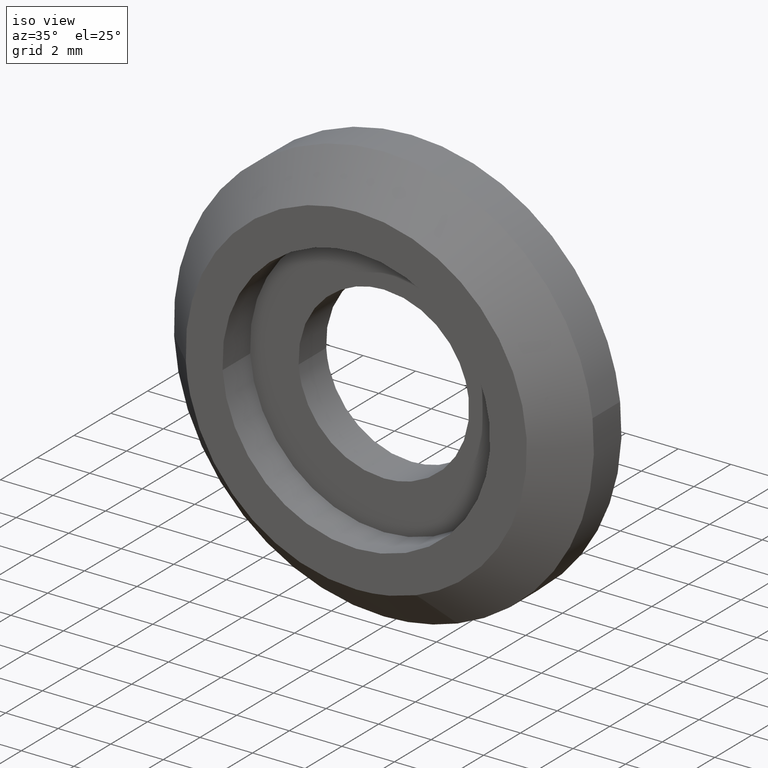
[diagram: clean part render]
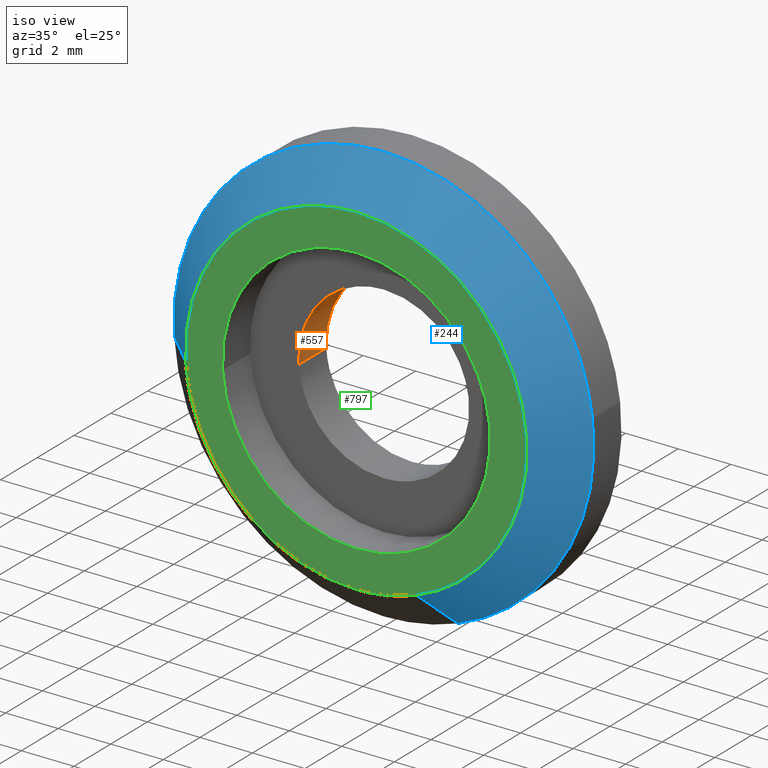
[diagram: same view with three faces highlighted in distinct colors, each labeled with its STEP entity id]
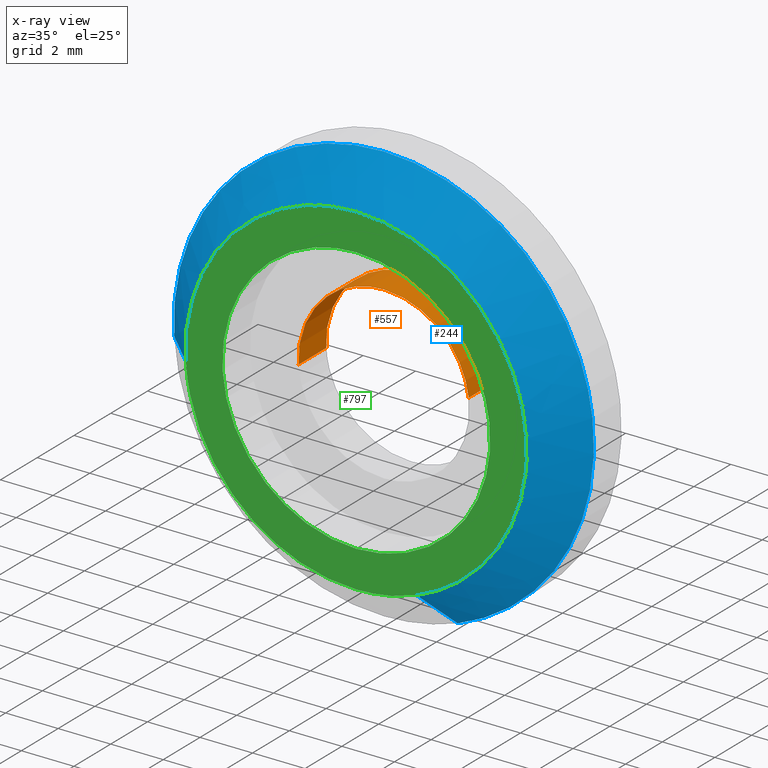
[diagram: x-ray of the same camera — body ghosted, the three highlighted faces saturated]
A machine part, iso view with three faces highlighted in distinct colors.
The next image is the same camera in x-ray (body ghosted, the three faces saturated) — at least one of them is partly hidden behind the body in this view.
Their STEP definitions:

[orange] entity #557 — the highlighted face is a freeform B-spline surface patch.
#394=CARTESIAN_POINT('',(3.227281486811727,1.500000000000071,0.383606836308235));
#395=VERTEX_POINT('',#394);
#413=CARTESIAN_POINT('',(-3.243938286670342,1.499999999999952,-0.198404617548119));
#414=VERTEX_POINT('',#413);
#428=CARTESIAN_POINT('',(-3.243938284306497,3.469447E-017,-0.198404656197849));
#429=VERTEX_POINT('',#428);
#430=CARTESIAN_POINT('',(-3.243938284306497,3.469447E-017,-0.198404656197849));
#431=CARTESIAN_POINT('',(-3.243938286670342,1.499999999999952,-0.198404617548119));
#432=QUASI_UNIFORM_CURVE('',1,(#430,#431),.UNSPECIFIED.,.F.,.U.);
#433=EDGE_CURVE('',#429,#414,#432,.T.);
#450=CARTESIAN_POINT('',(3.227281480315944,3.194357E-017,0.383606890957840));
#451=VERTEX_POINT('',#450);
#467=CARTESIAN_POINT('',(3.227281480315944,3.194357E-017,0.383606890957840));
#468=CARTESIAN_POINT('',(3.227281486811727,1.500000000000071,0.383606836308235));
#469=QUASI_UNIFORM_CURVE('',1,(#467,#468),.UNSPECIFIED.,.F.,.U.);
#470=EDGE_CURVE('',#451,#395,#469,.T.);
#475=CARTESIAN_POINT('',(-3.243938094871067,-0.037500000000000,-0.198407753488285));
#476=CARTESIAN_POINT('',(-3.442345848359353,-0.037500000000000,3.045530341382781));
#477=CARTESIAN_POINT('',(-0.198407753488285,-0.037500000000000,3.243938094871067));
#478=CARTESIAN_POINT('',(2.865016345228379,-0.037500000000000,3.431305139380714));
#479=CARTESIAN_POINT('',(3.227280960681916,-0.037500000000000,0.383611262634465));
#480=CARTESIAN_POINT('',(-3.243938094871067,1.538437500000000,-0.198407753488285));
#481=CARTESIAN_POINT('',(-3.442345848359353,1.538437500000001,3.045530341382781));
#482=CARTESIAN_POINT('',(-0.198407753488285,1.538437500000000,3.243938094871067));
#483=CARTESIAN_POINT('',(2.865016345228379,1.538437500000000,3.431305139380714));
#484=CARTESIAN_POINT('',(3.227280960681916,1.538437500000000,0.383611262634465));
#492=(BOUNDED_SURFACE()B_SPLINE_SURFACE(2,1,((#475,#480),(#476,#481),(#477,#482),(#478,#483),(#479,#484)),.UNSPECIFIED.,.F.,.F.,.U.)B_SPLINE_SURFACE_WITH_KNOTS((3,2,3),(2,2),(0.0,5.384776310850235,10.554161569266460),(0.0,1.0),.UNSPECIFIED.)GEOMETRIC_REPRESENTATION_ITEM()RATIONAL_B_SPLINE_SURFACE(((1.0,1.0),(0.707106781186548,0.707106781186548),(1.0,1.0),(0.718822509939086,0.718822509939086),(0.977505800795127,0.977505800795127)))REPRESENTATION_ITEM('')SURFACE());
#493=CARTESIAN_POINT('',(0.0,1.500000000000000,3.250000000000000));
#494=VERTEX_POINT('',#493);
#495=CARTESIAN_POINT('',(0.0,1.500000000000000,3.250000000000000));
#496=CARTESIAN_POINT('',(2.886571196239680,1.500000000000001,3.250000000000000));
#497=CARTESIAN_POINT('',(3.227281486811727,1.500000000000071,0.383606836308235));
#505=(BOUNDED_CURVE()B_SPLINE_CURVE(2,(#495,#496,#497),.UNSPECIFIED.,.F.,.U.)B_SPLINE_CURVE_WITH_KNOTS((3,3),(0.0,0.229562705309400),.UNSPECIFIED.)CURVE()GEOMETRIC_REPRESENTATION_ITEM()RATIONAL_B_SPLINE_CURVE((1.0,0.731050561289623,0.956027208513637))REPRESENTATION_ITEM(''));
#506=EDGE_CURVE('',#494,#395,#505,.T.);
#507=ORIENTED_EDGE('',*,*,#506,.T.);
#508=ORIENTED_EDGE('',*,*,#470,.F.);
#509=CARTESIAN_POINT('',(0.0,0.0,3.250000000000000));
#510=VERTEX_POINT('',#509);
#511=CARTESIAN_POINT('',(0.0,0.0,3.250000000000000));
#512=CARTESIAN_POINT('',(2.886571147015454,0.0,3.250000000000000));
#513=CARTESIAN_POINT('',(3.227281480315944,3.194357E-017,0.383606890957840));
#521=(BOUNDED_CURVE()B_SPLINE_CURVE(2,(#511,#512,#513),.UNSPECIFIED.,.F.,.U.)B_SPLINE_CURVE_WITH_KNOTS((3,3),(0.0,0.229562702447560),.UNSPECIFIED.)CURVE()GEOMETRIC_REPRESENTATION_ITEM()RATIONAL_B_SPLINE_CURVE((1.0,0.731050564642477,0.956027202904301))REPRESENTATION_ITEM(''));
#522=EDGE_CURVE('',#510,#451,#521,.T.);
#523=ORIENTED_EDGE('',*,*,#522,.F.);
#524=CARTESIAN_POINT('',(-3.243938284306497,3.469447E-017,-0.198404656197849));
#525=CARTESIAN_POINT('',(-3.250000000000000,0.0,-0.099294927733059));
#526=CARTESIAN_POINT('',(-3.250000000000000,0.0,0.0));
#527=CARTESIAN_POINT('',(-3.250000000000000,0.0,3.250000000000000));
#528=CARTESIAN_POINT('',(0.0,0.0,3.250000000000000));
#536=(BOUNDED_CURVE()B_SPLINE_CURVE(2,(#524,#525,#526,#527,#528),.UNSPECIFIED.,.F.,.U.)B_SPLINE_CURVE_WITH_KNOTS((3,2,3),(0.739333126988512,0.750000000000000,1.0),.UNSPECIFIED.)CURVE()GEOMETRIC_REPRESENTATION_ITEM()RATIONAL_B_SPLINE_CURVE((0.976072394756659,0.987502980915963,1.0,0.707106781186547,1.0))REPRESENTATION_ITEM(''));
#537=EDGE_CURVE('',#429,#510,#536,.T.);
#538=ORIENTED_EDGE('',*,*,#537,.F.);
#539=ORIENTED_EDGE('',*,*,#433,.T.);
#540=CARTESIAN_POINT('',(-3.243938286670342,1.499999999999951,-0.198404617548119));
#541=CARTESIAN_POINT('',(-3.250000000000000,1.500000000000000,-0.099294908354011));
#542=CARTESIAN_POINT('',(-3.250000000000000,1.500000000000000,0.0));
#543=CARTESIAN_POINT('',(-3.250000000000000,1.500000000000000,3.250000000000000));
#544=CARTESIAN_POINT('',(0.0,1.500000000000000,3.250000000000000));
#552=(BOUNDED_CURVE()B_SPLINE_CURVE(2,(#540,#541,#542,#543,#544),.UNSPECIFIED.,.F.,.U.)B_SPLINE_CURVE_WITH_KNOTS((3,2,3),(0.739333129044312,0.750000000000000,1.0),.UNSPECIFIED.)CURVE()GEOMETRIC_REPRESENTATION_ITEM()RATIONAL_B_SPLINE_CURVE((0.976072399162636,0.987502983324483,1.0,0.707106781186547,1.0))REPRESENTATION_ITEM(''));
#553=EDGE_CURVE('',#414,#494,#552,.T.);
#554=ORIENTED_EDGE('',*,*,#553,.T.);
#555=EDGE_LOOP('',(#507,#508,#523,#538,#539,#554));
#556=FACE_OUTER_BOUND('',#555,.T.);
#557=ADVANCED_FACE('',(#556),#492,.F.);

[blue] entity #244 — the highlighted face is a freeform B-spline surface patch.
#62=CARTESIAN_POINT('',(2.812943795141329,8.550710E-013,-7.489148630210885));
#63=VERTEX_POINT('',#62);
#79=CARTESIAN_POINT('',(2.285516833554305,-1.499999999999113,-6.084933262045807));
#80=VERTEX_POINT('',#79);
#81=CARTESIAN_POINT('',(2.285516833554305,-1.499999999999113,-6.084933262045807));
#82=CARTESIAN_POINT('',(2.812943795141329,8.550710E-013,-7.489148630210885));
#83=QUASI_UNIFORM_CURVE('',1,(#81,#82),.UNSPECIFIED.,.F.,.U.);
#84=EDGE_CURVE('',#80,#63,#83,.T.);
#101=CARTESIAN_POINT('',(-6.487876189742202,-1.499999999999874,-0.396815506977523));
#102=VERTEX_POINT('',#101);
#116=CARTESIAN_POINT('',(-7.985078472751683,-1.985229E-009,-0.488386887853882));
#117=VERTEX_POINT('',#116);
#118=CARTESIAN_POINT('',(-6.487876189742202,-1.499999999999874,-0.396815506977523));
#119=CARTESIAN_POINT('',(-7.985078472751683,-1.985229E-009,-0.488386887853882));
#120=QUASI_UNIFORM_CURVE('',1,(#118,#119),.UNSPECIFIED.,.F.,.U.);
#121=EDGE_CURVE('',#102,#117,#120,.T.);
#139=CARTESIAN_POINT('',(-6.450446134801312,-1.537500000000000,-0.394526186744013));
#140=CARTESIAN_POINT('',(-6.844972321545325,-1.537500000000000,6.055919948057299));
#141=CARTESIAN_POINT('',(-0.394526186744013,-1.537500000000000,6.450446134801312));
#142=CARTESIAN_POINT('',(6.055919948057299,-1.537500000000000,6.844972321545325));
#143=CARTESIAN_POINT('',(6.450446134801312,-1.537500000000000,0.394526186744013));
#144=CARTESIAN_POINT('',(6.741920552793120,-1.537500000000001,-4.371038422402307));
#145=CARTESIAN_POINT('',(2.272331159505534,-1.537500000000001,-6.049827877844145));
#146=CARTESIAN_POINT('',(-8.023444193689274,0.038437500000000,-0.490734869517227));
#147=CARTESIAN_POINT('',(-8.514179063206502,0.038437500000000,7.532709324172047));
#148=CARTESIAN_POINT('',(-0.490734869517227,0.038437500000000,8.023444193689274));
#149=CARTESIAN_POINT('',(7.532709324172047,0.038437500000000,8.514179063206502));
#150=CARTESIAN_POINT('',(8.023444193689274,0.038437500000000,0.490734869517227));
#151=CARTESIAN_POINT('',(8.385997213708775,0.038437500000000,-5.436954610225077));
#152=CARTESIAN_POINT('',(2.826459111023253,0.038437500000000,-7.525131649022485));
#160=(BOUNDED_SURFACE()B_SPLINE_SURFACE(2,1,((#139,#146),(#140,#147),(#141,#148),(#142,#149),(#143,#150),(#144,#151),(#145,#152)),.UNSPECIFIED.,.F.,.F.,.U.)B_SPLINE_SURFACE_WITH_KNOTS((3,2,2,3),(2,2),(0.0,13.318519331153899,26.637038662307809,37.291854127230927),(0.0,2.228712185952351),.UNSPECIFIED.)GEOMETRIC_REPRESENTATION_ITEM()RATIONAL_B_SPLINE_SURFACE(((1.0,1.0),(0.707106781186548,0.707106781186548),(1.0,1.0),(0.707106781186548,0.707106781186548),(1.0,1.0),(0.765685424949238,0.765685424949238),(0.906274169979695,0.906274169979695)))REPRESENTATION_ITEM('')SURFACE());
#161=CARTESIAN_POINT('',(7.944076812039399,4.167216E-014,0.944268819982941));
#162=VERTEX_POINT('',#161);
#163=CARTESIAN_POINT('',(7.944076812039400,4.167216E-014,0.944268819982941));
#164=CARTESIAN_POINT('',(8.0,0.0,0.473790401847546));
#165=CARTESIAN_POINT('',(8.0,0.0,0.0));
#166=CARTESIAN_POINT('',(8.0,0.0,-5.540876765541983));
#167=CARTESIAN_POINT('',(2.812943795141329,8.550710E-013,-7.489148630210885));
#175=(BOUNDED_CURVE()B_SPLINE_CURVE(2,(#163,#164,#165,#166,#167),.UNSPECIFIED.,.F.,.U.)B_SPLINE_CURVE_WITH_KNOTS((3,2,3),(0.229562581104653,0.250000000000000,0.440284170898552),.UNSPECIFIED.)CURVE()GEOMETRIC_REPRESENTATION_ITEM()RATIONAL_B_SPLINE_CURVE((0.956026965066855,0.976056074382012,1.0,0.777068226785096,0.893499554635329))REPRESENTATION_ITEM(''));
#176=EDGE_CURVE('',#162,#63,#175,.T.);
#177=ORIENTED_EDGE('',*,*,#176,.F.);
#178=CARTESIAN_POINT('',(0.0,0.0,8.0));
#179=VERTEX_POINT('',#178);
#180=CARTESIAN_POINT('',(0.0,0.0,8.0));
#181=CARTESIAN_POINT('',(7.105400762814723,0.0,8.000000000000002));
#182=CARTESIAN_POINT('',(7.944076812039400,4.167216E-014,0.944268819982941));
#190=(BOUNDED_CURVE()B_SPLINE_CURVE(2,(#180,#181,#182),.UNSPECIFIED.,.F.,.U.)B_SPLINE_CURVE_WITH_KNOTS((3,3),(0.0,0.229562581104653),.UNSPECIFIED.)CURVE()GEOMETRIC_REPRESENTATION_ITEM()RATIONAL_B_SPLINE_CURVE((1.0,0.731050706804535,0.956026965066855))REPRESENTATION_ITEM(''));
#191=EDGE_CURVE('',#179,#162,#190,.T.);
#192=ORIENTED_EDGE('',*,*,#191,.F.);
#193=CARTESIAN_POINT('',(-7.985078472751683,-1.985229E-009,-0.488386887853882));
#194=CARTESIAN_POINT('',(-8.000000000000002,0.0,-0.244421390234428));
#195=CARTESIAN_POINT('',(-8.0,0.0,0.0));
#196=CARTESIAN_POINT('',(-8.0,0.0,8.0));
#197=CARTESIAN_POINT('',(0.0,0.0,8.0));
#205=(BOUNDED_CURVE()B_SPLINE_CURVE(2,(#193,#194,#195,#196,#197),.UNSPECIFIED.,.F.,.U.)B_SPLINE_CURVE_WITH_KNOTS((3,2,3),(0.739332993105690,0.750000000000000,1.0),.UNSPECIFIED.)CURVE()GEOMETRIC_REPRESENTATION_ITEM()RATIONAL_B_SPLINE_CURVE((0.976072107820041,0.987502824062481,1.0,0.707106781186548,1.0))REPRESENTATION_ITEM(''));
#206=EDGE_CURVE('',#117,#179,#205,.T.);
#207=ORIENTED_EDGE('',*,*,#206,.F.);
#208=ORIENTED_EDGE('',*,*,#121,.F.);
#209=CARTESIAN_POINT('',(0.0,-1.500000000000000,6.500000000000000));
#210=VERTEX_POINT('',#209);
#211=CARTESIAN_POINT('',(-6.487876189742202,-1.499999999999874,-0.396815506977523));
#212=CARTESIAN_POINT('',(-6.500000000000001,-1.500000000000001,-0.198592961441776));
#213=CARTESIAN_POINT('',(-6.500000000000000,-1.500000000000000,0.0));
#214=CARTESIAN_POINT('',(-6.500000000000000,-1.500000000000000,6.500000000000000));
#215=CARTESIAN_POINT('',(0.0,-1.500000000000000,6.500000000000000));
#223=(BOUNDED_CURVE()B_SPLINE_CURVE(2,(#211,#212,#213,#214,#215),.UNSPECIFIED.,.F.,.U.)B_SPLINE_CURVE_WITH_KNOTS((3,2,3),(0.739332962241918,0.750000000000000,1.0),.UNSPECIFIED.)CURVE()GEOMETRIC_REPRESENTATION_ITEM()RATIONAL_B_SPLINE_CURVE((0.976072041673094,0.987502787903323,1.0,0.707106781186547,1.0))REPRESENTATION_ITEM(''));
#224=EDGE_CURVE('',#102,#210,#223,.T.);
#225=ORIENTED_EDGE('',*,*,#224,.T.);
#226=CARTESIAN_POINT('',(0.0,-1.500000000000000,6.500000000000000));
#227=CARTESIAN_POINT('',(6.500000000000000,-1.500000000000000,6.500000000000000));
#228=CARTESIAN_POINT('',(6.500000000000000,-1.500000000000000,0.0));
#229=CARTESIAN_POINT('',(6.500000000000000,-1.499999999999999,-4.501962371999858));
#230=CARTESIAN_POINT('',(2.285516833554305,-1.499999999999113,-6.084933262045807));
#238=(BOUNDED_CURVE()B_SPLINE_CURVE(2,(#226,#227,#228,#229,#230),.UNSPECIFIED.,.F.,.U.)B_SPLINE_CURVE_WITH_KNOTS((3,2,3),(0.0,0.250000000000000,0.440284170898454),.UNSPECIFIED.)CURVE()GEOMETRIC_REPRESENTATION_ITEM()RATIONAL_B_SPLINE_CURVE((1.0,0.707106781186547,1.0,0.777068226785211,0.893499554635208))REPRESENTATION_ITEM(''));
#239=EDGE_CURVE('',#210,#80,#238,.T.);
#240=ORIENTED_EDGE('',*,*,#239,.T.);
#241=ORIENTED_EDGE('',*,*,#84,.T.);
#242=EDGE_LOOP('',(#177,#192,#207,#208,#225,#240,#241));
#243=FACE_OUTER_BOUND('',#242,.T.);
#244=ADVANCED_FACE('',(#243),#160,.T.);

[green] entity #797 — the highlighted face is a freeform B-spline surface patch.
#79=CARTESIAN_POINT('',(2.285516833554305,-1.499999999999113,-6.084933262045807));
#80=VERTEX_POINT('',#79);
#86=CARTESIAN_POINT('',(0.0,-1.500000000000000,-6.500000000000000));
#87=VERTEX_POINT('',#86);
#88=CARTESIAN_POINT('',(2.285516833554305,-1.499999999999113,-6.084933262045807));
#89=CARTESIAN_POINT('',(1.180448009443627,-1.500000000000000,-6.500000000000000));
#90=CARTESIAN_POINT('',(0.0,-1.500000000000000,-6.500000000000000));
#98=(BOUNDED_CURVE()B_SPLINE_CURVE(2,(#88,#89,#90),.UNSPECIFIED.,.F.,.U.)B_SPLINE_CURVE_WITH_KNOTS((3,3),(0.440284170898454,0.500000000000000),.UNSPECIFIED.)CURVE()GEOMETRIC_REPRESENTATION_ITEM()RATIONAL_B_SPLINE_CURVE((0.893499554635208,0.930038554401337,1.0))REPRESENTATION_ITEM(''));
#99=EDGE_CURVE('',#80,#87,#98,.T.);
#101=CARTESIAN_POINT('',(-6.487876189742202,-1.499999999999874,-0.396815506977523));
#102=VERTEX_POINT('',#101);
#103=CARTESIAN_POINT('',(0.0,-1.500000000000000,-6.500000000000000));
#104=CARTESIAN_POINT('',(-6.114589434885240,-1.500000000000001,-6.500000000000001));
#105=CARTESIAN_POINT('',(-6.487876189742202,-1.499999999999874,-0.396815506977523));
#113=(BOUNDED_CURVE()B_SPLINE_CURVE(2,(#103,#104,#105),.UNSPECIFIED.,.F.,.U.)B_SPLINE_CURVE_WITH_KNOTS((3,3),(0.500000000000000,0.739332962241918),.UNSPECIFIED.)CURVE()GEOMETRIC_REPRESENTATION_ITEM()RATIONAL_B_SPLINE_CURVE((1.0,0.719603993283224,0.976072041673094))REPRESENTATION_ITEM(''));
#114=EDGE_CURVE('',#87,#102,#113,.T.);
#209=CARTESIAN_POINT('',(0.0,-1.500000000000000,6.500000000000000));
#210=VERTEX_POINT('',#209);
#211=CARTESIAN_POINT('',(-6.487876189742202,-1.499999999999874,-0.396815506977523));
#212=CARTESIAN_POINT('',(-6.500000000000001,-1.500000000000001,-0.198592961441776));
#213=CARTESIAN_POINT('',(-6.500000000000000,-1.500000000000000,0.0));
#214=CARTESIAN_POINT('',(-6.500000000000000,-1.500000000000000,6.500000000000000));
#215=CARTESIAN_POINT('',(0.0,-1.500000000000000,6.500000000000000));
#223=(BOUNDED_CURVE()B_SPLINE_CURVE(2,(#211,#212,#213,#214,#215),.UNSPECIFIED.,.F.,.U.)B_SPLINE_CURVE_WITH_KNOTS((3,2,3),(0.739332962241918,0.750000000000000,1.0),.UNSPECIFIED.)CURVE()GEOMETRIC_REPRESENTATION_ITEM()RATIONAL_B_SPLINE_CURVE((0.976072041673094,0.987502787903323,1.0,0.707106781186547,1.0))REPRESENTATION_ITEM(''));
#224=EDGE_CURVE('',#102,#210,#223,.T.);
#226=CARTESIAN_POINT('',(0.0,-1.500000000000000,6.500000000000000));
#227=CARTESIAN_POINT('',(6.500000000000000,-1.500000000000000,6.500000000000000));
#228=CARTESIAN_POINT('',(6.500000000000000,-1.500000000000000,0.0));
#229=CARTESIAN_POINT('',(6.500000000000000,-1.499999999999999,-4.501962371999858));
#230=CARTESIAN_POINT('',(2.285516833554305,-1.499999999999113,-6.084933262045807));
#238=(BOUNDED_CURVE()B_SPLINE_CURVE(2,(#226,#227,#228,#229,#230),.UNSPECIFIED.,.F.,.U.)B_SPLINE_CURVE_WITH_KNOTS((3,2,3),(0.0,0.250000000000000,0.440284170898454),.UNSPECIFIED.)CURVE()GEOMETRIC_REPRESENTATION_ITEM()RATIONAL_B_SPLINE_CURVE((1.0,0.707106781186547,1.0,0.777068226785211,0.893499554635208))REPRESENTATION_ITEM(''));
#239=EDGE_CURVE('',#210,#80,#238,.T.);
#614=CARTESIAN_POINT('',(-5.090487552947563,-1.500000000000000,-0.311346227348550));
#615=VERTEX_POINT('',#614);
#621=CARTESIAN_POINT('',(0.0,-1.500000000000000,-5.100000000000001));
#622=VERTEX_POINT('',#621);
#623=CARTESIAN_POINT('',(0.0,-1.500000000000000,-5.100000000000001));
#624=CARTESIAN_POINT('',(-4.797602191636886,-1.500000000000000,-5.100000000000001));
#625=CARTESIAN_POINT('',(-5.090487552947563,-1.500000000000000,-0.311346227348550));
#633=(BOUNDED_CURVE()B_SPLINE_CURVE(2,(#623,#624,#625),.UNSPECIFIED.,.F.,.U.)B_SPLINE_CURVE_WITH_KNOTS((3,3),(0.500000000000000,0.739333007129641),.UNSPECIFIED.)CURVE()GEOMETRIC_REPRESENTATION_ITEM()RATIONAL_B_SPLINE_CURVE((1.0,0.719603940693986,0.976072137876048))REPRESENTATION_ITEM(''));
#634=EDGE_CURVE('',#622,#615,#633,.T.);
#636=CARTESIAN_POINT('',(5.064348871488670,-1.500000000000000,0.601972181953224));
#637=VERTEX_POINT('',#636);
#638=CARTESIAN_POINT('',(5.064348871488670,-1.500000000000000,0.601972181953224));
#639=CARTESIAN_POINT('',(5.100000000000001,-1.500000000000000,0.302041790062247));
#640=CARTESIAN_POINT('',(5.100000000000001,-1.500000000000000,0.0));
#641=CARTESIAN_POINT('',(5.100000000000001,-1.500000000000000,-5.100000000000001));
#642=CARTESIAN_POINT('',(0.0,-1.500000000000000,-5.100000000000001));
#650=(BOUNDED_CURVE()B_SPLINE_CURVE(2,(#638,#639,#640,#641,#642),.UNSPECIFIED.,.F.,.U.)B_SPLINE_CURVE_WITH_KNOTS((3,2,3),(0.229562554100228,0.250000000000000,0.500000000000000),.UNSPECIFIED.)CURVE()GEOMETRIC_REPRESENTATION_ITEM()RATIONAL_B_SPLINE_CURVE((0.956026912137029,0.976056042744360,1.0,0.707106781186548,1.0))REPRESENTATION_ITEM(''));
#651=EDGE_CURVE('',#637,#622,#650,.T.);
#695=CARTESIAN_POINT('',(0.0,-1.500000000000000,5.100000000000001));
#696=VERTEX_POINT('',#695);
#697=CARTESIAN_POINT('',(0.0,-1.500000000000000,5.100000000000001));
#698=CARTESIAN_POINT('',(4.529692257415985,-1.500000000000000,5.100000000000000));
#699=CARTESIAN_POINT('',(5.064348871488670,-1.500000000000000,0.601972181953224));
#707=(BOUNDED_CURVE()B_SPLINE_CURVE(2,(#697,#698,#699),.UNSPECIFIED.,.F.,.U.)B_SPLINE_CURVE_WITH_KNOTS((3,3),(0.0,0.229562554100228),.UNSPECIFIED.)CURVE()GEOMETRIC_REPRESENTATION_ITEM()RATIONAL_B_SPLINE_CURVE((1.0,0.731050738442187,0.956026912137029))REPRESENTATION_ITEM(''));
#708=EDGE_CURVE('',#696,#637,#707,.T.);
#710=CARTESIAN_POINT('',(-5.090487552947563,-1.500000000000000,-0.311346227348550));
#711=CARTESIAN_POINT('',(-5.100000000000001,-1.500000000000000,-0.155818428826631));
#712=CARTESIAN_POINT('',(-5.100000000000001,-1.500000000000000,0.0));
#713=CARTESIAN_POINT('',(-5.100000000000001,-1.500000000000000,5.100000000000001));
#714=CARTESIAN_POINT('',(0.0,-1.500000000000000,5.100000000000001));
#722=(BOUNDED_CURVE()B_SPLINE_CURVE(2,(#710,#711,#712,#713,#714),.UNSPECIFIED.,.F.,.U.)B_SPLINE_CURVE_WITH_KNOTS((3,2,3),(0.739333007129641,0.750000000000000,1.0),.UNSPECIFIED.)CURVE()GEOMETRIC_REPRESENTATION_ITEM()RATIONAL_B_SPLINE_CURVE((0.976072137876048,0.987502840492562,1.0,0.707106781186548,1.0))REPRESENTATION_ITEM(''));
#723=EDGE_CURVE('',#615,#696,#722,.T.);
#780=CARTESIAN_POINT('',(-7.149191782424748,-1.500000000000000,7.149349974803477));
#781=CARTESIAN_POINT('',(-7.149191782424748,-1.500000000000000,-7.149350323490650));
#782=CARTESIAN_POINT('',(7.149226883600057,-1.500000000000000,7.149349974803477));
#783=CARTESIAN_POINT('',(7.149226883600057,-1.500000000000000,-7.149350323490650));
#784=B_SPLINE_SURFACE_WITH_KNOTS('',1,1,((#780,#782),(#781,#783)),.UNSPECIFIED.,.F.,.F.,.U.,(2,2),(2,2),(0.0,14.298700298294129),(0.0,14.298418666024810),.UNSPECIFIED.);
#785=ORIENTED_EDGE('',*,*,#224,.F.);
#786=ORIENTED_EDGE('',*,*,#114,.F.);
#787=ORIENTED_EDGE('',*,*,#99,.F.);
#788=ORIENTED_EDGE('',*,*,#239,.F.);
#789=EDGE_LOOP('',(#785,#786,#787,#788));
#790=FACE_OUTER_BOUND('',#789,.T.);
#791=ORIENTED_EDGE('',*,*,#634,.T.);
#792=ORIENTED_EDGE('',*,*,#723,.T.);
#793=ORIENTED_EDGE('',*,*,#708,.T.);
#794=ORIENTED_EDGE('',*,*,#651,.T.);
#795=EDGE_LOOP('',(#791,#792,#793,#794));
#796=FACE_BOUND('',#795,.T.);
#797=ADVANCED_FACE('',(#790,#796),#784,.T.);